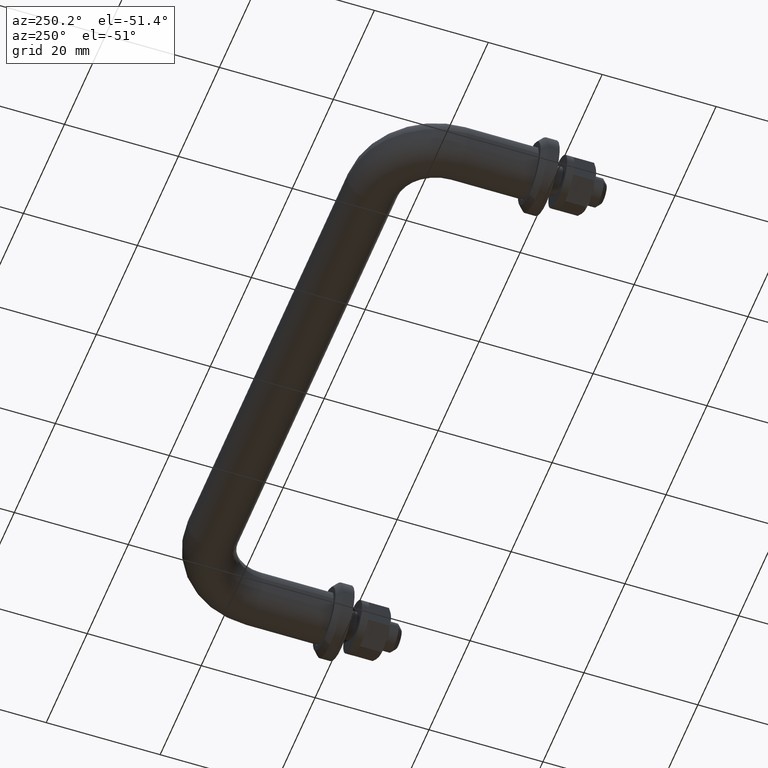
[diagram: clean part render]
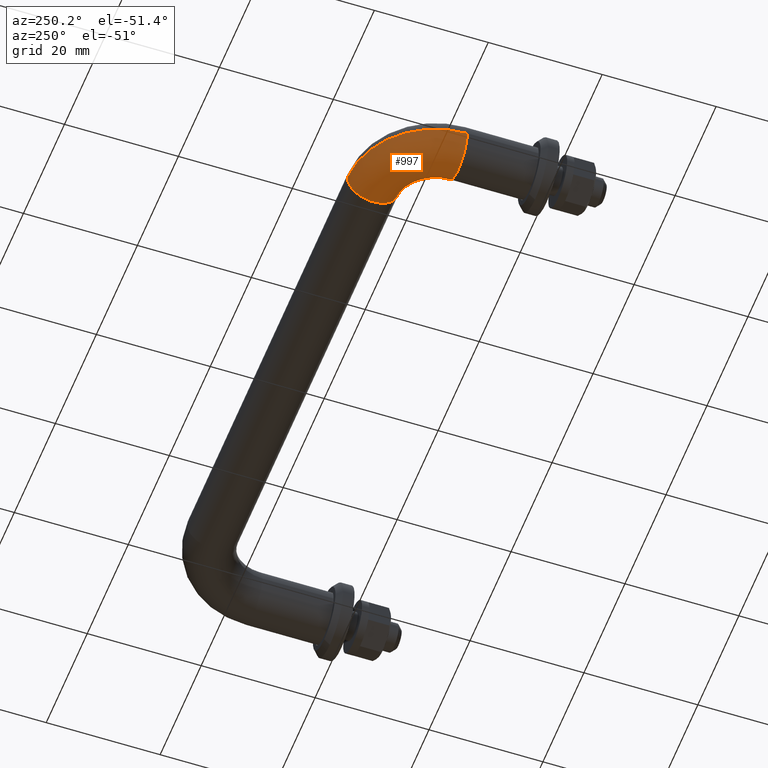
[diagram: same view with one face highlighted and labeled with its STEP entity id]
A machine part, auxiliary view. The second image highlights one B-rep face of the part: STEP entity #997.
In plain terms, the highlighted toroidal blend (fillet) surface has major radius 11 mm and minor (blend) radius 4.5 mm.
Its self-contained STEP definition (entity closure, byte-faithful):
#66 = VERTEX_POINT ( 'NONE', #802 ) ;
#87 = ORIENTED_EDGE ( 'NONE', *, *, #437, .T. ) ;
#107 = VERTEX_POINT ( 'NONE', #495 ) ;
#194 = CARTESIAN_POINT ( 'NONE',  ( -39.00000000000001400, 14.49999999999999800, 0.0000000000000000000 ) ) ;
#205 = CIRCLE ( 'NONE', #855, 4.499999999999998200 ) ;
#213 = CARTESIAN_POINT ( 'NONE',  ( -39.00000000000001400, 14.49999999999999800, 0.0000000000000000000 ) ) ;
#223 = DIRECTION ( 'NONE',  ( -1.000000000000000000, 0.0000000000000000000, 0.0000000000000000000 ) ) ;
#239 = CIRCLE ( 'NONE', #748, 15.50000000000000000 ) ;
#259 = DIRECTION ( 'NONE',  ( 0.0000000000000000000, 0.0000000000000000000, 1.000000000000000000 ) ) ;
#351 = TOROIDAL_SURFACE ( 'NONE', #911, 11.00000000000000400, 4.499999999999998200 ) ;
#425 = DIRECTION ( 'NONE',  ( 0.0000000000000000000, 1.000000000000000000, 0.0000000000000000000 ) ) ;
#437 = EDGE_CURVE ( 'NONE', #66, #1091, #205, .T. ) ;
#495 = CARTESIAN_POINT ( 'NONE',  ( -38.99999999999999300, 30.00000000000000000, 0.0000000000000000000 ) ) ;
#497 = CARTESIAN_POINT ( 'NONE',  ( -54.50000000000001400, 14.50000000000001400, 5.510910596163096500E-016 ) ) ;
#528 = CARTESIAN_POINT ( 'NONE',  ( -39.00000000000001400, 14.49999999999999800, 5.510910596163086600E-016 ) ) ;
#536 = DIRECTION ( 'NONE',  ( 1.000000000000000000, -3.828568698926949400E-016, 0.0000000000000000000 ) ) ;
#679 = DIRECTION ( 'NONE',  ( 0.0000000000000000000, 0.0000000000000000000, 1.000000000000000000 ) ) ;
#743 = ORIENTED_EDGE ( 'NONE', *, *, #1737, .F. ) ;
#748 = AXIS2_PLACEMENT_3D ( 'NONE', #194, #1023, #873 ) ;
#802 = CARTESIAN_POINT ( 'NONE',  ( -45.50000000000002100, 14.50000000000001400, 0.0000000000000000000 ) ) ;
#836 = CARTESIAN_POINT ( 'NONE',  ( -50.00000000000001400, 14.50000000000001400, 0.0000000000000000000 ) ) ;
#843 = EDGE_LOOP ( 'NONE', ( #87, #1276, #1324, #743 ) ) ;
#855 = AXIS2_PLACEMENT_3D ( 'NONE', #836, #425, #679 ) ;
#873 = DIRECTION ( 'NONE',  ( -1.000000000000000000, 0.0000000000000000000, 0.0000000000000000000 ) ) ;
#875 = AXIS2_PLACEMENT_3D ( 'NONE', #1262, #536, #259 ) ;
#911 = AXIS2_PLACEMENT_3D ( 'NONE', #213, #915, #223 ) ;
#915 = DIRECTION ( 'NONE',  ( -0.0000000000000000000, -0.0000000000000000000, -1.000000000000000000 ) ) ;
#937 = VERTEX_POINT ( 'NONE', #1335 ) ;
#997 = ADVANCED_FACE ( 'NONE', ( #1779 ), #351, .T. ) ;
#1023 = DIRECTION ( 'NONE',  ( -0.0000000000000000000, -0.0000000000000000000, -1.000000000000000000 ) ) ;
#1091 = VERTEX_POINT ( 'NONE', #497 ) ;
#1262 = CARTESIAN_POINT ( 'NONE',  ( -38.99999999999999300, 25.50000000000000400, 0.0000000000000000000 ) ) ;
#1271 = EDGE_CURVE ( 'NONE', #937, #107, #1778, .T. ) ;
#1276 = ORIENTED_EDGE ( 'NONE', *, *, #1585, .T. ) ;
#1324 = ORIENTED_EDGE ( 'NONE', *, *, #1271, .F. ) ;
#1335 = CARTESIAN_POINT ( 'NONE',  ( -38.99999999999999300, 21.00000000000000400, 5.510910596163096500E-016 ) ) ;
#1487 = CIRCLE ( 'NONE', #1769, 6.500000000000005300 ) ;
#1585 = EDGE_CURVE ( 'NONE', #1091, #107, #239, .T. ) ;
#1656 = DIRECTION ( 'NONE',  ( -0.0000000000000000000, -0.0000000000000000000, -1.000000000000000000 ) ) ;
#1737 = EDGE_CURVE ( 'NONE', #66, #937, #1487, .T. ) ;
#1769 = AXIS2_PLACEMENT_3D ( 'NONE', #528, #1656, #1774 ) ;
#1774 = DIRECTION ( 'NONE',  ( -1.000000000000000000, 0.0000000000000000000, 0.0000000000000000000 ) ) ;
#1778 = CIRCLE ( 'NONE', #875, 4.499999999999998200 ) ;
#1779 = FACE_OUTER_BOUND ( 'NONE', #843, .T. ) ;